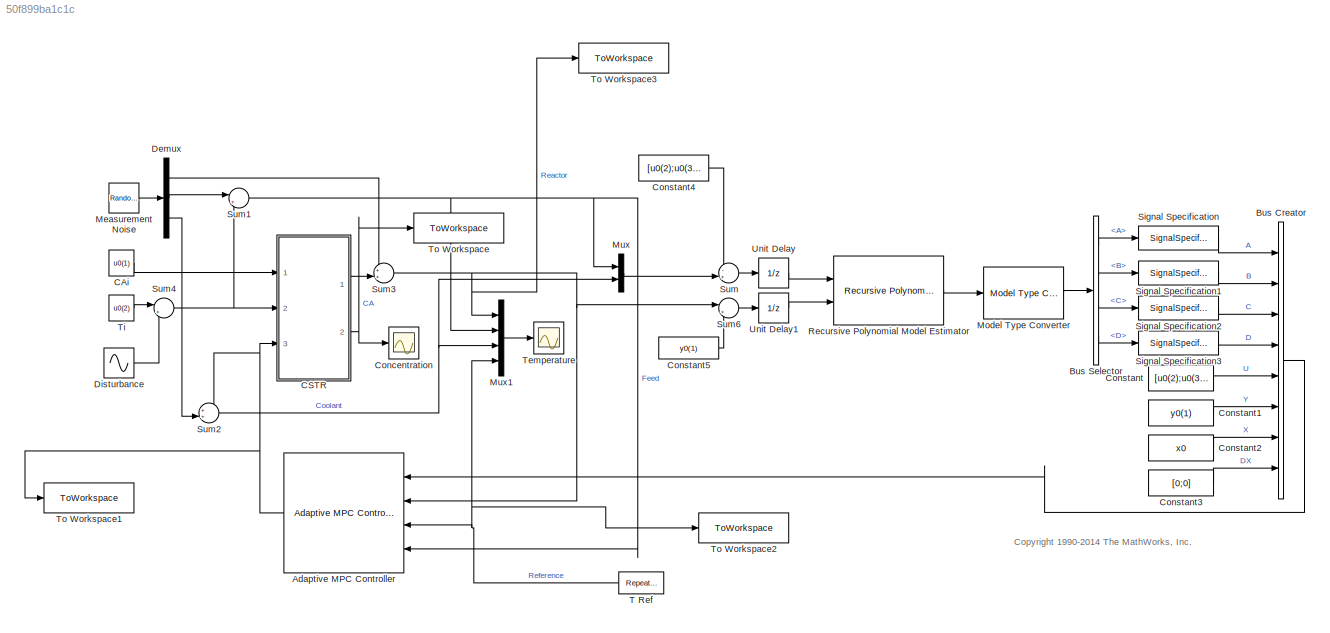
MODEL slx_50f899ba1c1c
KIND model
CONFIG AbsTol = auto
CONFIG EnableMultiTasking = on
CONFIG FixedStep = auto
CONFIG MaxStep = 0.5*Ts
CONFIG MinStep = auto
CONFIG RelTol = 1e-3
CONFIG SampleTimeConstraint = Unconstrained
CONFIG SolverName = ode45
CONFIG StartTime = 0
CONFIG StopTime = 150
BLOCK [Reference] Adaptive MPC Controller  REF=mpclib/Adaptive MPC Controller  (lib defined in mdl_ae329e0e0455)
  Ports = [4, 1]
  SCDEnableBlockLinearizationSpecification = on
  SourceBlock = mpclib/Adaptive MPC Controller
  SourceProductBaseCode = MP
  SourceType = Adaptive MPC
BLOCK [BusCreator] Bus Creator
  DisplayOption = bar
  InheritFromInputs = on
  Inputs = 8
  Ports = [8, 1]
BLOCK [BusSelector] Bus Selector
  OutputSignals = A,B,C,D
  Ports = [1, 4]
BLOCK [Constant] CAi
  Value = u0(1)
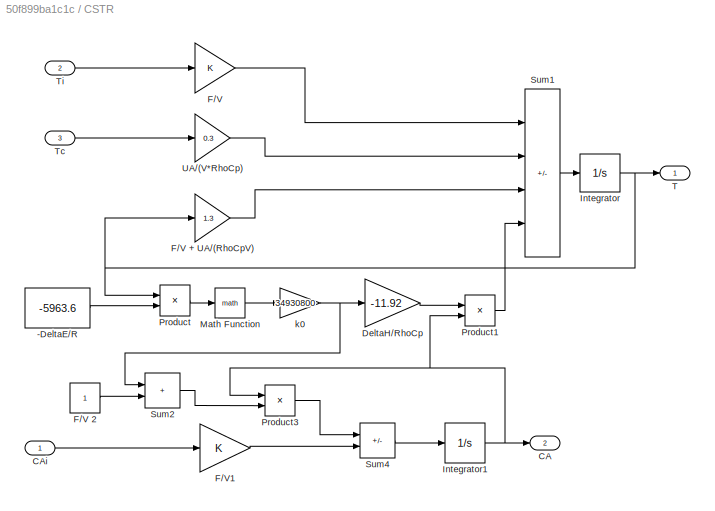
BLOCK [SubSystem] CSTR
  Ports = [3, 2]
  RequestExecContextInheritance = off
BLOCK [Constant] CSTR/-DeltaE//R
  Value = -5963.6
BLOCK [Outport] CSTR/CA
  Port = 2
  VectorParamsAs1DForOutWhenUnconnected = off
BLOCK [Inport] CSTR/CAi
BLOCK [Gain] CSTR/DeltaH//RhoCp
  Gain = -11.92
  OutDataTypeStr = Inherit: Same as input
  ParamDataTypeStr = Inherit: Same as input
  SaturateOnIntegerOverflow = on
BLOCK [Gain] CSTR/F//V
  OutDataTypeStr = Inherit: Same as input
  ParamDataTypeStr = Inherit: Same as input
  SaturateOnIntegerOverflow = on
BLOCK [Gain] CSTR/F//V + UA//(RhoCpV)
  Gain = 1.3
  OutDataTypeStr = Inherit: Same as input
  ParamDataTypeStr = Inherit: Same as input
  SaturateOnIntegerOverflow = on
BLOCK [Constant] CSTR/F//V 2
BLOCK [Gain] CSTR/F//V1
  OutDataTypeStr = Inherit: Same as input
  ParamDataTypeStr = Inherit: Same as input
  SaturateOnIntegerOverflow = on
BLOCK [Integrator] CSTR/Integrator
  InitialCondition = 311.2639
  LimitOutput = on
  LowerSaturationLimit = 0
  Ports = [1, 1]
BLOCK [Integrator] CSTR/Integrator1
  InitialCondition = 8.5698
  LimitOutput = on
  LowerSaturationLimit = 0
  Ports = [1, 1]
BLOCK [Math] CSTR/Math Function
  Ports = [1, 1]
  SignedPower = on
BLOCK [Product] CSTR/Product
  InputSameDT = on
  Inputs = /*
  OutDataTypeStr = Inherit: Same as first input
  Ports = [2, 1]
  RndMeth = Zero
  SaturateOnIntegerOverflow = on
BLOCK [Product] CSTR/Product1
  InputSameDT = on
  OutDataTypeStr = Inherit: Same as first input
  Ports = [2, 1]
  RndMeth = Zero
  SaturateOnIntegerOverflow = on
BLOCK [Product] CSTR/Product3
  InputSameDT = on
  OutDataTypeStr = Inherit: Same as first input
  Ports = [2, 1]
  RndMeth = Zero
  SaturateOnIntegerOverflow = on
BLOCK [Sum] CSTR/Sum1
  IconShape = rectangular
  InputSameDT = on
  Inputs = ++--
  OutDataTypeStr = Inherit: Same as first input
  Ports = [4, 1]
  SaturateOnIntegerOverflow = on
BLOCK [Sum] CSTR/Sum2
  IconShape = rectangular
  InputSameDT = on
  OutDataTypeStr = Inherit: Same as first input
  Ports = [2, 1]
  SaturateOnIntegerOverflow = on
BLOCK [Sum] CSTR/Sum4
  IconShape = rectangular
  InputSameDT = on
  Inputs = -+
  OutDataTypeStr = Inherit: Same as first input
  Ports = [2, 1]
  SaturateOnIntegerOverflow = on
BLOCK [Outport] CSTR/T
  VectorParamsAs1DForOutWhenUnconnected = off
BLOCK [Inport] CSTR/Tc
  Port = 3
BLOCK [Inport] CSTR/Ti
  Port = 2
BLOCK [Gain] CSTR/UA//(V*RhoCp)
  Gain = 0.3
  OutDataTypeStr = Inherit: Same as input
  ParamDataTypeStr = Inherit: Same as input
  SaturateOnIntegerOverflow = on
BLOCK [Gain] CSTR/k0
  Gain = 34930800
  OutDataTypeStr = Inherit: Same as input
  ParamDataTypeStr = Inherit: Same as input
  SaturateOnIntegerOverflow = on
BLOCK [Scope] Concentration
  Floating = off
  NumInputPorts = 1
  Ports = [1]
  ScopeSpecificationString = Simulink.scopes.TimeScopeBlockCfg('CurrentConfiguration', extmgr.ConfigurationSet(extmgr.Configuration('Core','General UI',true),extmgr.Configuration('Core','Source UI',true),extmgr.Configuration('Sources','WiredSimulink',true,'DataLoggingVariableName','ScopeData1','DataLoggingSaveFormat','Array','DataLoggingDecimation','1','DataLoggingDecimateData',true),extmgr.Configuration('Visuals','Time Domai...<+1690ch>
BLOCK [Constant] Constant
  Value = [u0(2);u0(3)]
  VectorParams1D = off
BLOCK [Constant] Constant1
  Value = y0(1)
  VectorParams1D = off
BLOCK [Constant] Constant2
  Value = x0
  VectorParams1D = off
BLOCK [Constant] Constant3
  Value = [0;0]
  VectorParams1D = off
BLOCK [Constant] Constant4
  Value = [u0(2);u0(3)]
BLOCK [Constant] Constant5
  Value = y0(1)
BLOCK [Demux] Demux
  Outputs = 3
  Ports = [1, 3]
BLOCK [Sin] Disturbance
  Amplitude = 5
  Frequency = 0.05
  Ports = [0, 1]
  SampleTime = 0
BLOCK [RandomNumber] Measurement Noise
  Mean = [0 0 0]
  SampleTime = Ts/5
  Seed = 12345
  Variance = 0.001*[1 1 1]
BLOCK [Reference] Model Type Converter  REF=slident/Estimators/Model Type Converter  (lib defined in mdl_f7d4911ca73a)
  Ports = [1, 1]
  SourceBlock = slident/Estimators/Model Type Converter
  SourceProductBaseCode = ID
  SourceType = idModelTypeConverter
BLOCK [Mux] Mux
  DisplayOption = bar
  Inputs = 2
  Ports = [2, 1]
BLOCK [Mux] Mux1
  DisplayOption = bar
  Ports = [4, 1]
BLOCK [Reference] Recursive Polynomial Model Estimator  REF=slident/Estimators/Recursive Polynomial Model Estimator  (lib defined in mdl_f7d4911ca73a)
  Ports = [2, 1]
  SourceBlock = slident/Estimators/Recursive Polynomial Model Estimator
  SourceProductBaseCode = ID
  SourceType = idEstimatorsPolyModel
BLOCK [SignalSpecification] Signal Specification
  Dimensions = [2 2]
BLOCK [SignalSpecification] Signal Specification1
  Dimensions = [2 2]
BLOCK [SignalSpecification] Signal Specification2
  Dimensions = [1 2]
BLOCK [SignalSpecification] Signal Specification3
  Dimensions = [1 2]
BLOCK [Sum] Sum
  Inputs = -+|
  Ports = [2, 1]
BLOCK [Sum] Sum1
  Inputs = |++
  Ports = [2, 1]
  SampleTime = Ts/5
BLOCK [Sum] Sum2
  Inputs = ++|
  Ports = [2, 1]
  SampleTime = Ts/5
BLOCK [Sum] Sum3
  Inputs = ++|
  Ports = [2, 1]
  SampleTime = Ts/5
BLOCK [Sum] Sum4
  Inputs = |++
  Ports = [2, 1]
  SampleTime = Ts/5
BLOCK [Sum] Sum6
  Inputs = |+-
  Ports = [2, 1]
BLOCK [Reference] T Ref  REF=simulink/Sources/Repeating
Sequence
Interpolated
  Ports = [0, 1]
  SourceBlock = simulink/Sources/Repeating\nSequence\nInterpolated
  SourceProductBaseCode = SL
  SourceType = Repeating Sequence Interpolated
BLOCK [Scope] Temperature
  Floating = off
  NumInputPorts = 1
  Ports = [1]
  ScopeSpecificationString = Simulink.scopes.TimeScopeBlockCfg('CurrentConfiguration', extmgr.ConfigurationSet(extmgr.Configuration('Core','General UI',true),extmgr.Configuration('Core','Source UI',true),extmgr.Configuration('Sources','WiredSimulink',true,'DataLoggingSaveFormat','Array','DataLoggingDecimation','1','DataLoggingDecimateData',true),extmgr.Configuration('Visuals','Time Domain',true,'SerializedDisplays',{struct('M...<+1726ch>
BLOCK [Constant] Ti
  Value = u0(2)
BLOCK [ToWorkspace] To Workspace
  FixptAsFi = on
  MaxDataPoints = inf
  Ports = [1]
  SampleTime = -1
  SaveFormat = Timeseries
  VariableName = sim_nmpc_ca
BLOCK [ToWorkspace] To Workspace1
  FixptAsFi = on
  MaxDataPoints = inf
  Ports = [1]
  SampleTime = -1
  SaveFormat = Timeseries
  VariableName = sim_nmpc_mv
BLOCK [ToWorkspace] To Workspace2
  FixptAsFi = on
  MaxDataPoints = inf
  Ports = [1]
  SampleTime = -1
  SaveFormat = Timeseries
  VariableName = sim_nmpc_refftraj
BLOCK [ToWorkspace] To Workspace3
  FixptAsFi = on
  MaxDataPoints = inf
  Ports = [1]
  SampleTime = -1
  SaveFormat = Timeseries
  VariableName = sim_nmpc_mo
BLOCK [UnitDelay] Unit Delay
  HasFrameUpgradeWarning = on
  InitialCondition = [0;0]
  SampleTime = Ts
BLOCK [UnitDelay] Unit Delay1
  HasFrameUpgradeWarning = on
  SampleTime = Ts
ANNOTATION (root): <copyright redacted>
NET Adaptive MPC Controller:1 -> CSTR:3, Sum2:1, To Workspace1:1
LINE Bus Creator:1 -> Adaptive MPC Controller:1
LINE Bus Selector:1 -> Signal Specification:1
LINE Bus Selector:2 -> Signal Specification1:1
LINE Bus Selector:3 -> Signal Specification2:1
LINE Bus Selector:4 -> Signal Specification3:1
LINE CAi:1 -> CSTR:1
LINE CSTR/-DeltaE//R:1 -> CSTR/Product:2
LINE CSTR/CAi:1 -> CSTR/F//V1:1
LINE CSTR/DeltaH//RhoCp:1 -> CSTR/Product1:1
LINE CSTR/F//V + UA//(RhoCpV):1 -> CSTR/Sum1:3
LINE CSTR/F//V 2:1 -> CSTR/Sum2:2
LINE CSTR/F//V1:1 -> CSTR/Sum4:2
LINE CSTR/F//V:1 -> CSTR/Sum1:1
NET CSTR/Integrator1:1 -> CSTR/CA:1, CSTR/Product1:2, CSTR/Product3:1
NET CSTR/Integrator:1 -> CSTR/F//V + UA//(RhoCpV):1, CSTR/Product:1, CSTR/T:1
LINE CSTR/Math Function:1 -> CSTR/k0:1
LINE CSTR/Product1:1 -> CSTR/Sum1:4
LINE CSTR/Product3:1 -> CSTR/Sum4:1
LINE CSTR/Product:1 -> CSTR/Math Function:1
LINE CSTR/Sum1:1 -> CSTR/Integrator:1
LINE CSTR/Sum2:1 -> CSTR/Product3:2
LINE CSTR/Sum4:1 -> CSTR/Integrator1:1
LINE CSTR/Tc:1 -> CSTR/UA//(V*RhoCp):1
LINE CSTR/Ti:1 -> CSTR/F//V:1
LINE CSTR/UA//(V*RhoCp):1 -> CSTR/Sum1:2
NET CSTR/k0:1 -> CSTR/DeltaH//RhoCp:1, CSTR/Sum2:1
LINE CSTR:1 -> Sum3:2
NET CSTR:2 -> Concentration:1, To Workspace:1
LINE Constant1:1 -> Bus Creator:6
LINE Constant2:1 -> Bus Creator:7
LINE Constant3:1 -> Bus Creator:8
LINE Constant4:1 -> Sum:1
LINE Constant5:1 -> Sum6:2
LINE Constant:1 -> Bus Creator:5
LINE Demux:1 -> Sum3:1
LINE Demux:2 -> Sum1:1
LINE Demux:3 -> Sum2:2
LINE Disturbance:1 -> Sum4:2
LINE Measurement Noise:1 -> Demux:1
LINE Model Type Converter:1 -> Bus Selector:1
LINE Mux1:1 -> Temperature:1
LINE Mux:1 -> Sum:2
LINE Recursive Polynomial Model Estimator:1 -> Model Type Converter:1
LINE Signal Specification1:1 -> Bus Creator:2
LINE Signal Specification2:1 -> Bus Creator:3
LINE Signal Specification3:1 -> Bus Creator:4
LINE Signal Specification:1 -> Bus Creator:1
NET Sum1:1 -> Adaptive MPC Controller:4, Mux1:2, Mux:1
NET Sum2:1 -> Mux1:3, Mux:2
NET Sum3:1 -> Adaptive MPC Controller:2, Mux1:1, Sum6:1, To Workspace3:1
NET Sum4:1 -> CSTR:2, Sum1:2
LINE Sum6:1 -> Unit Delay1:1
LINE Sum:1 -> Unit Delay:1
NET T Ref:1 -> Adaptive MPC Controller:3, Mux1:4, To Workspace2:1
LINE Ti:1 -> Sum4:1
LINE Unit Delay1:1 -> Recursive Polynomial Model Estimator:2
LINE Unit Delay:1 -> Recursive Polynomial Model Estimator:1
note: NET lines group one-source signal fan-out (src -> all destinations, sorted); 1:1 wires keep LINE
